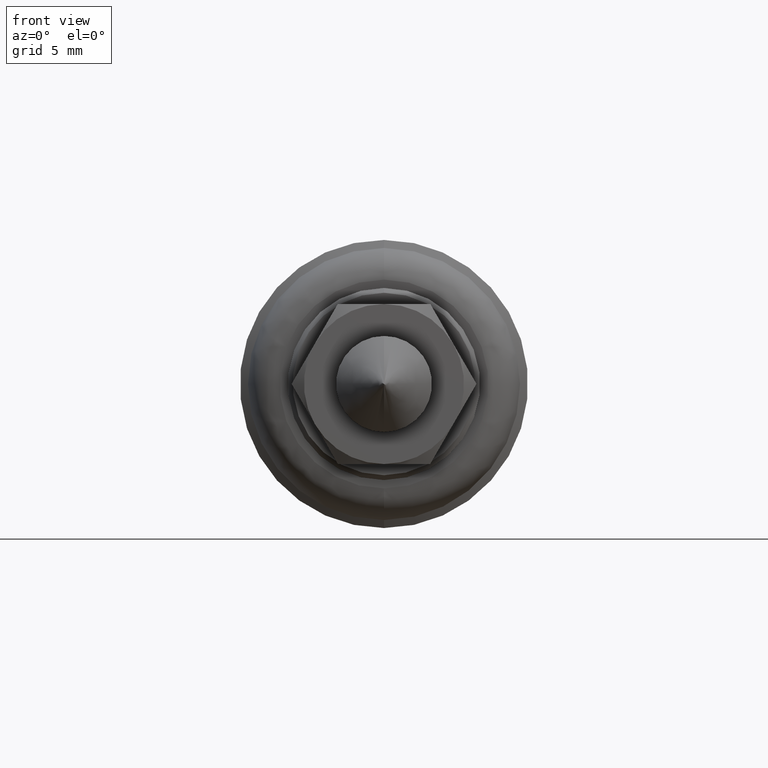
[diagram: clean part render]
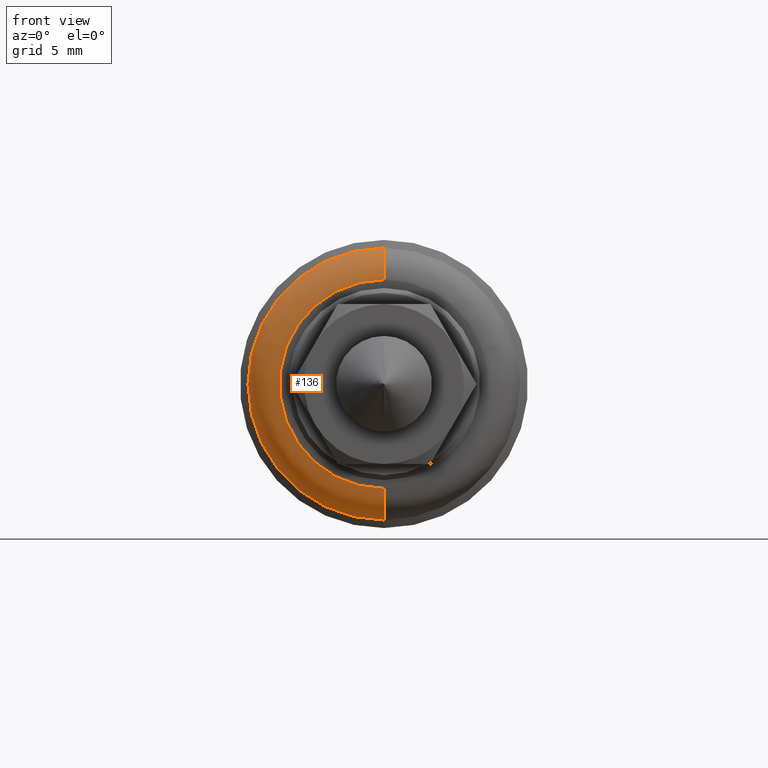
[diagram: same view with one face highlighted and labeled with its STEP entity id]
A machine part, front view. The second image highlights one B-rep face of the part: STEP entity #136.
In plain terms, the highlighted face is a freeform B-spline surface patch.
Its self-contained STEP definition (entity closure, byte-faithful):
#136=ADVANCED_FACE('',(#398),#397,.T.);
#397=( BOUNDED_SURFACE() B_SPLINE_SURFACE( 2,2,((#792,#793,#794,#795,#796),(#797,#798,#799,#800,#801),(#802,#803,#804,#805,#806),(#807,#808,#809,#810,#811),(#812,#813,#814,#815,#816)), .UNSPECIFIED.,.F.,.F.,.F.) B_SPLINE_SURFACE_WITH_KNOTS((3,2,3),(3,2,3),(0.00000000000E+00,5.00000000000E-01,1.00000000000E+00),(0.00000000000E+00,5.00000000000E-01,1.00000000000E+00), .UNSPECIFIED. ) GEOMETRIC_REPRESENTATION_ITEM() RATIONAL_B_SPLINE_SURFACE(((1.00000000000E+00,7.58257104017E-01,1.00000000000E+00,7.58257104017E-01,1.00000000000E+00),(7.07106781187E-01,5.36168740133E-01,7.07106781187E-01,5.36168740133E-01,7.07106781187E-01),(1.00000000000E+00,7.58257104017E-01,1.00000000000E+00,7.58257104017E-01,1.00000000000E+00),(7.07106781187E-01,5.36168740133E-01,7.07106781187E-01,5.36168740133E-01,7.07106781187E-01),(1.00000000000E+00,7.58257104017E-01,1.00000000000E+00,7.58257104017E-01,1.00000000000E+00))) REPRESENTATION_ITEM('') SURFACE() );
#398=FACE_OUTER_BOUND('',#817,.T.);
#792=CARTESIAN_POINT('',(-5.56608079939E-16,2.92001846568E+01,-4.54520000000E+00));
#793=CARTESIAN_POINT('',(-5.88176433029E-16,2.75000000000E+01,-4.80298367874E+00));
#794=CARTESIAN_POINT('',(-7.98761740344E-16,2.75000000000E+01,-6.52260000000E+00));
#795=CARTESIAN_POINT('',(-1.00934704766E-15,2.75000000000E+01,-8.24221632126E+00));
#796=CARTESIAN_POINT('',(-1.04091540075E-15,2.92001846568E+01,-8.50000000000E+00));
#797=CARTESIAN_POINT('',(-4.54520000000E+00,2.92001846568E+01,-4.54520000000E+00));
#798=CARTESIAN_POINT('',(-4.80298367874E+00,2.75000000000E+01,-4.80298367874E+00));
#799=CARTESIAN_POINT('',(-6.52260000000E+00,2.75000000000E+01,-6.52260000000E+00));
#800=CARTESIAN_POINT('',(-8.24221632126E+00,2.75000000000E+01,-8.24221632126E+00));
#801=CARTESIAN_POINT('',(-8.50000000000E+00,2.92001846568E+01,-8.50000000000E+00));
#802=CARTESIAN_POINT('',(-4.54520000000E+00,2.92001846568E+01,2.78294848365E-16));
#803=CARTESIAN_POINT('',(-4.80298367874E+00,2.75000000000E+01,2.94078503603E-16));
#804=CARTESIAN_POINT('',(-6.52260000000E+00,2.75000000000E+01,3.99367679738E-16));
#805=CARTESIAN_POINT('',(-8.24221632126E+00,2.75000000000E+01,5.04656855874E-16));
#806=CARTESIAN_POINT('',(-8.50000000000E+00,2.92001846568E+01,5.20440511111E-16));
#807=CARTESIAN_POINT('',(-4.54520000000E+00,2.92001846568E+01,4.54520000000E+00));
#808=CARTESIAN_POINT('',(-4.80298367874E+00,2.75000000000E+01,4.80298367874E+00));
#809=CARTESIAN_POINT('',(-6.52260000000E+00,2.75000000000E+01,6.52260000000E+00));
#810=CARTESIAN_POINT('',(-8.24221632126E+00,2.75000000000E+01,8.24221632126E+00));
#811=CARTESIAN_POINT('',(-8.50000000000E+00,2.92001846568E+01,8.50000000000E+00));
#812=CARTESIAN_POINT('',(-1.83832091079E-20,2.92001846568E+01,4.54520000000E+00));
#813=CARTESIAN_POINT('',(-1.94258235740E-20,2.75000000000E+01,4.80298367874E+00));
#814=CARTESIAN_POINT('',(-2.63808676687E-20,2.75000000000E+01,6.52260000000E+00));
#815=CARTESIAN_POINT('',(-3.33359117633E-20,2.75000000000E+01,8.24221632126E+00));
#816=CARTESIAN_POINT('',(-3.43785262295E-20,2.92001846568E+01,8.50000000000E+00));
#817=EDGE_LOOP('',(#1030,#1031,#1032,#1033));
#1030=ORIENTED_EDGE('',*,*,#1141,.F.);
#1031=ORIENTED_EDGE('',*,*,#1162,.F.);
#1032=ORIENTED_EDGE('',*,*,#1124,.T.);
#1033=ORIENTED_EDGE('',*,*,#1163,.T.);
#1124=EDGE_CURVE('',#1272,#1273,#1274,.T.);
#1141=EDGE_CURVE('',#1368,#1367,#1387,.T.);
#1162=EDGE_CURVE('',#1272,#1368,#1519,.T.);
#1163=EDGE_CURVE('',#1273,#1367,#1525,.T.);
#1272=VERTEX_POINT('',#1833);
#1273=VERTEX_POINT('',#1834);
#1274=CIRCLE('',#1838,6.52260000000E+00);
#1367=VERTEX_POINT('',#1892);
#1368=VERTEX_POINT('',#1893);
#1387=CIRCLE('',#1905,8.50000000000E+00);
#1519=(BOUNDED_CURVE() B_SPLINE_CURVE(2,(#1967,#1968,#1969),.UNSPECIFIED.,.F.,.F.) B_SPLINE_CURVE_WITH_KNOTS((3,3),(5.00000000000E-01,1.00000000000E+00),.UNSPECIFIED.) CURVE() GEOMETRIC_REPRESENTATION_ITEM() RATIONAL_B_SPLINE_CURVE((1.00000000000E+00,7.58257104017E-01,1.00000000000E+00)) REPRESENTATION_ITEM('') );
#1525=(BOUNDED_CURVE() B_SPLINE_CURVE(3,(#1970,#1971,#1972,#1973,#1974),.UNSPECIFIED.,.F.,.F.) B_SPLINE_CURVE_WITH_KNOTS((4,1,4),(4.99999992628E-01,7.49999995855E-01,1.00000000000E+00),.UNSPECIFIED.) CURVE() GEOMETRIC_REPRESENTATION_ITEM() RATIONAL_B_SPLINE_CURVE((1.00000000000E+00,1.00000000000E+00,1.00000000000E+00,1.00000000000E+00,1.00000000000E+00)) REPRESENTATION_ITEM('') );
#1833=CARTESIAN_POINT('',(2.96059473233E-16,2.75000000000E+01,-6.52260000000E+00));
#1834=CARTESIAN_POINT('',(0.00000000000E+00,2.75000000000E+01,6.52260000000E+00));
#1835=CARTESIAN_POINT('',(0.00000000000E+00,2.75000000000E+01,0.00000000000E+00));
#1836=DIRECTION('',(0.00000000000E+00,1.00000000000E+00,-0.00000000000E+00));
#1837=DIRECTION('',(-1.22460635382E-16,0.00000000000E+00,1.00000000000E+00));
#1838=AXIS2_PLACEMENT_3D('',#1835,#1836,#1837);
#1892=CARTESIAN_POINT('',(0.00000000000E+00,2.92001846568E+01,8.50000000000E+00));
#1893=CARTESIAN_POINT('',(5.92118946467E-16,2.92001846568E+01,-8.50000000000E+00));
#1902=CARTESIAN_POINT('',(0.00000000000E+00,2.92001846568E+01,0.00000000000E+00));
#1903=DIRECTION('',(0.00000000000E+00,1.00000000000E+00,-0.00000000000E+00));
#1904=DIRECTION('',(-1.22460635382E-16,0.00000000000E+00,1.00000000000E+00));
#1905=AXIS2_PLACEMENT_3D('',#1902,#1903,#1904);
#1967=CARTESIAN_POINT('',(-7.98761740344E-16,2.75000000000E+01,-6.52260000000E+00));
#1968=CARTESIAN_POINT('',(-1.00934704766E-15,2.75000000000E+01,-8.24221632126E+00));
#1969=CARTESIAN_POINT('',(-1.04091540075E-15,2.92001846568E+01,-8.50000000000E+00));
#1970=CARTESIAN_POINT('',(5.92118950688E-16,2.75000000000E+01,6.52259996155E+00));
#1971=CARTESIAN_POINT('',(7.49483681531E-16,2.74970487323E+01,6.99246000781E+00));
#1972=CARTESIAN_POINT('',(1.17666442912E-15,2.78508513861E+01,7.94055140725E+00));
#1973=CARTESIAN_POINT('',(1.61189338539E-15,2.87351916110E+01,8.43248228378E+00));
#1974=CARTESIAN_POINT('',(1.77635683940E-15,2.92001846568E+01,8.50000000000E+00));